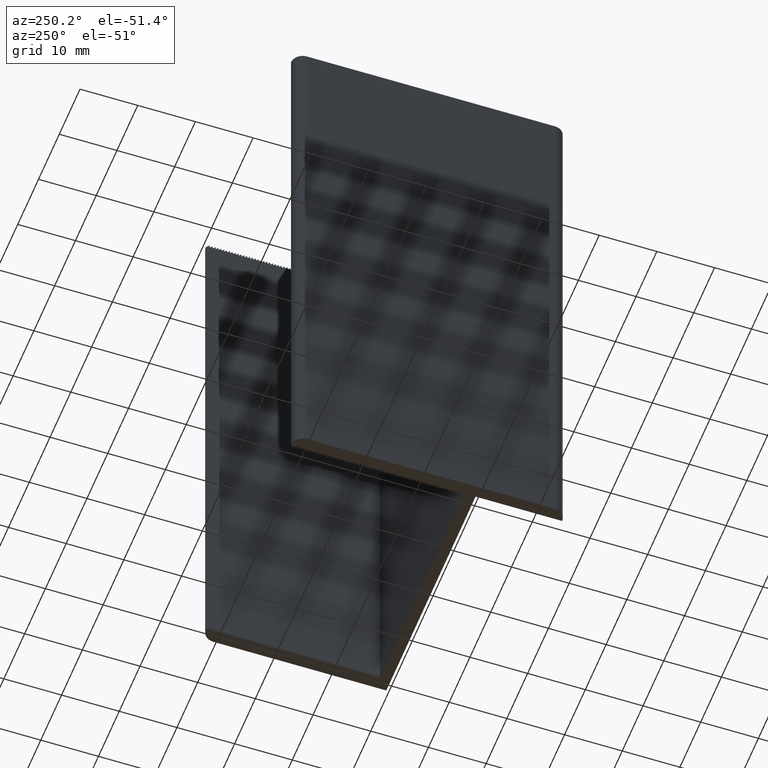
[diagram: clean part render]
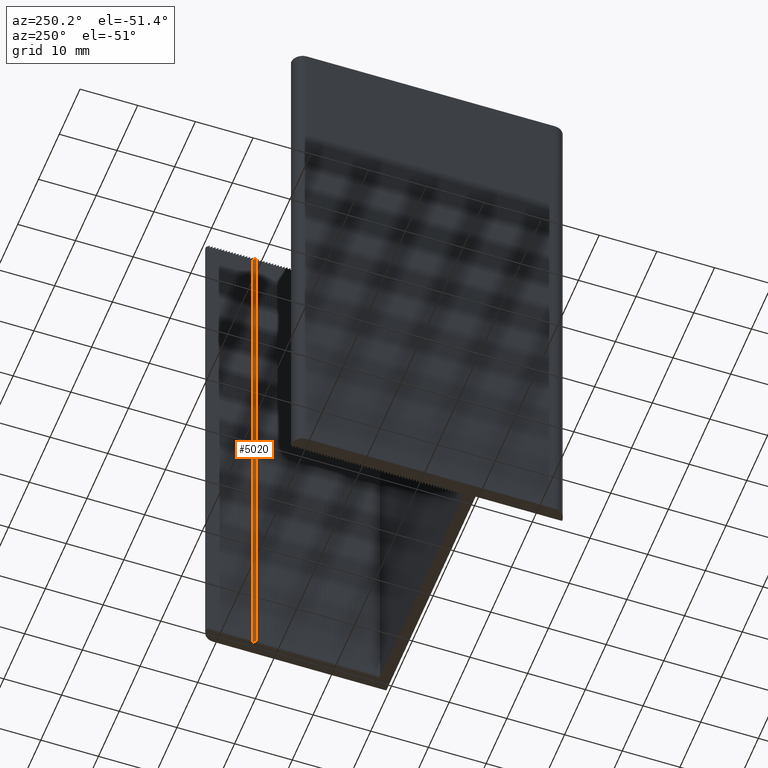
[diagram: same view with one face highlighted and labeled with its STEP entity id]
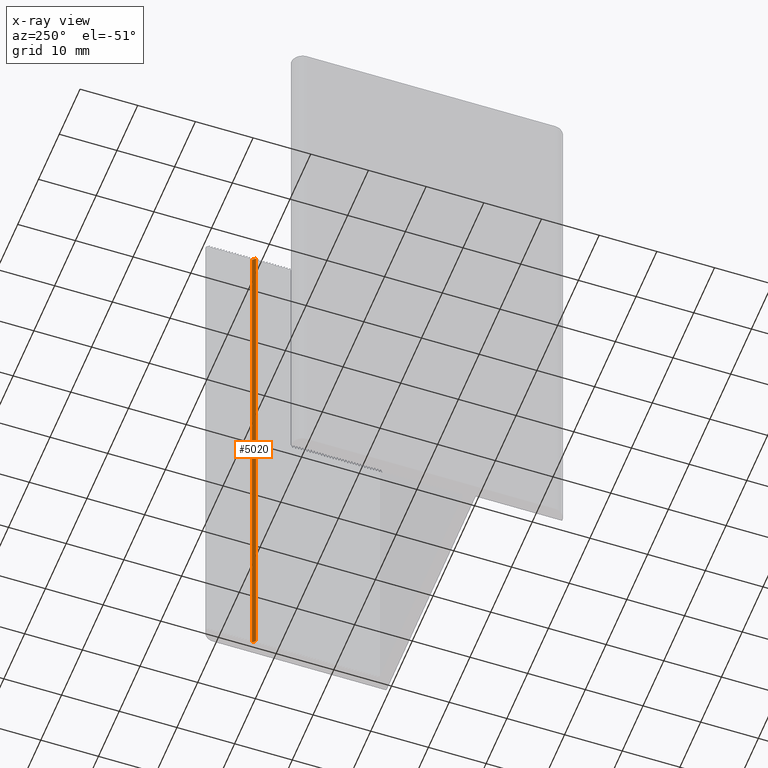
[diagram: x-ray of the same camera — body ghosted, the highlighted face saturated]
A machine part, auxiliary view. The second image highlights one B-rep face of the part: STEP entity #5020.
The next image is the same camera in x-ray: the body ghosted, the highlighted face saturated — about 0% of this face is hidden behind the body in this view.
In plain terms, the highlighted planar face has unit normal (-0.7071, 0.7071, 0).
Its self-contained STEP definition (entity closure, byte-faithful):
#109=FACE_OUTER_BOUND('',#357,.T.);
#357=EDGE_LOOP('',(#3554,#3555,#3556,#3557));
#775=LINE('',#7194,#1507);
#776=LINE('',#7197,#1508);
#777=LINE('',#7199,#1509);
#778=LINE('',#7200,#1510);
#1507=VECTOR('',#5866,100.);
#1508=VECTOR('',#5869,0.707106781186545);
#1509=VECTOR('',#5870,0.707106781186545);
#1510=VECTOR('',#5871,100.);
#2154=VERTEX_POINT('',#7190);
#2155=VERTEX_POINT('',#7192);
#2156=VERTEX_POINT('',#7196);
#2157=VERTEX_POINT('',#7198);
#2731=EDGE_CURVE('',#2154,#2155,#775,.T.);
#2732=EDGE_CURVE('',#2154,#2156,#776,.T.);
#2733=EDGE_CURVE('',#2157,#2155,#777,.T.);
#2734=EDGE_CURVE('',#2156,#2157,#778,.T.);
#3554=ORIENTED_EDGE('',*,*,#2732,.F.);
#3555=ORIENTED_EDGE('',*,*,#2731,.T.);
#3556=ORIENTED_EDGE('',*,*,#2733,.F.);
#3557=ORIENTED_EDGE('',*,*,#2734,.F.);
#4775=PLANE('',#5270);
#5020=ADVANCED_FACE('',(#109),#4775,.T.);
#5270=AXIS2_PLACEMENT_3D('',#7195,#5867,#5868);
#5866=DIRECTION('',(0.,0.,1.));
#5867=DIRECTION('center_axis',(-0.707106781186548,0.707106781186548,0.));
#5868=DIRECTION('ref_axis',(-0.707106781186548,-0.707106781186548,0.));
#5869=DIRECTION('',(0.707106781186547,0.707106781186547,0.));
#5870=DIRECTION('',(-0.707106781186547,-0.707106781186547,0.));
#5871=DIRECTION('',(0.,0.,1.));
#7190=CARTESIAN_POINT('',(20.,23.5,0.));
#7192=CARTESIAN_POINT('',(20.,23.5,100.));
#7194=CARTESIAN_POINT('',(20.,23.5,0.));
#7195=CARTESIAN_POINT('Origin',(20.5,24.,0.));
#7196=CARTESIAN_POINT('',(20.5,24.,0.));
#7197=CARTESIAN_POINT('',(20.,23.5,0.));
#7198=CARTESIAN_POINT('',(20.5,24.,100.));
#7199=CARTESIAN_POINT('',(20.,23.5,100.));
#7200=CARTESIAN_POINT('',(20.5,24.,0.));